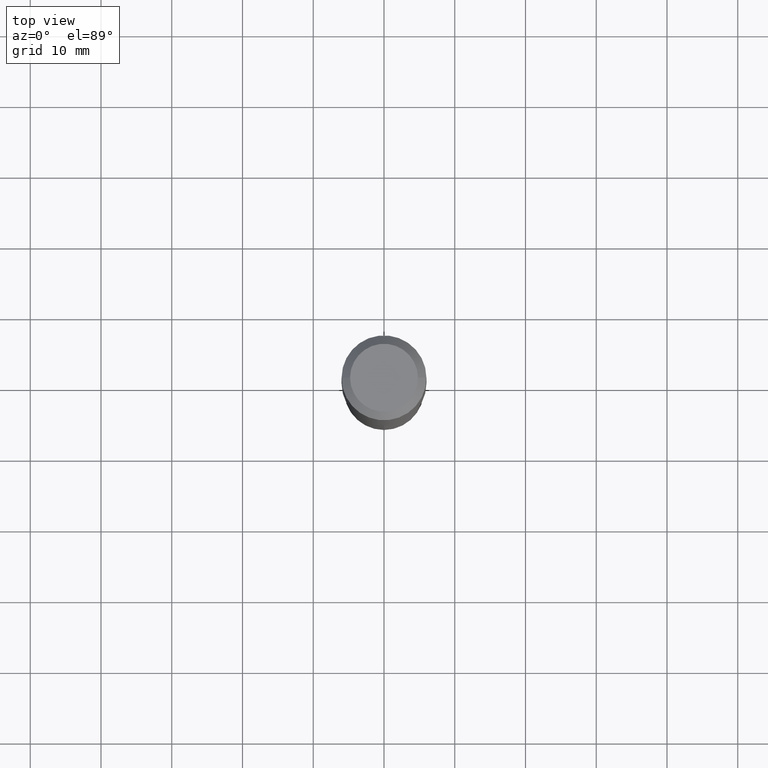
[diagram: clean part render]
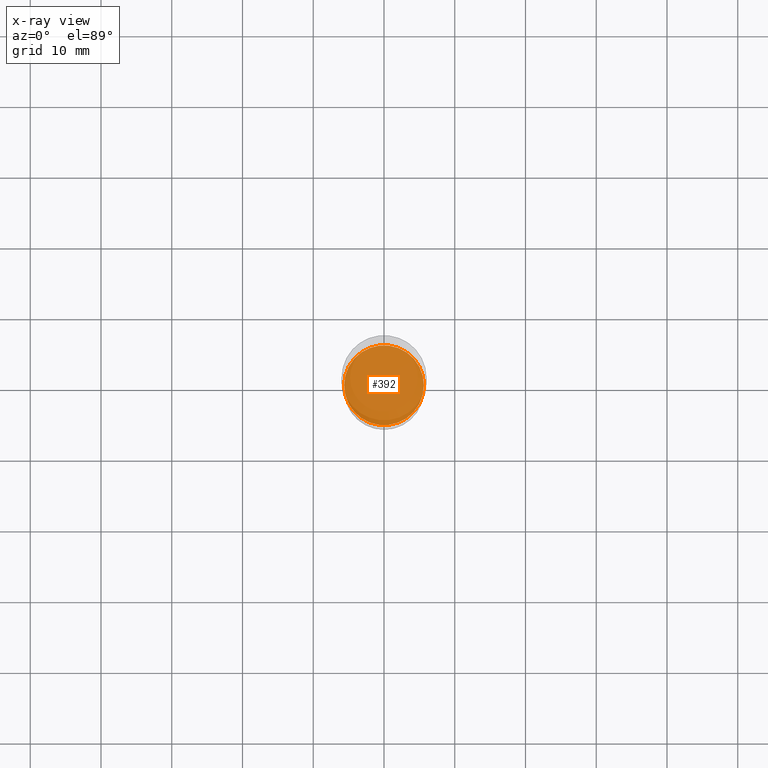
[diagram: x-ray — body ghosted, one internal face saturated and labeled with its STEP entity id]
A machine part, top view, then the same camera in x-ray: the body is ghosted and one INTERNAL B-rep face — a face not visible from any outside direction — is saturated and labeled: STEP entity #392.
In plain terms, the highlighted planar face has unit normal (-0, 0, 1).
Its self-contained STEP definition (entity closure, byte-faithful):
#18 = AXIS2_PLACEMENT_3D ( 'NONE', #471, #140, #287 ) ;
#38 = CARTESIAN_POINT ( 'NONE',  ( 3.871214344919766864E-29, -1.152671263135646311E-14, -2.440900000000000070 ) ) ;
#41 = DIRECTION ( 'NONE',  ( 1.000000000000000000, -6.982962677686265133E-15, 0.000000000000000000 ) ) ;
#77 = AXIS2_PLACEMENT_3D ( 'NONE', #196, #125, #41 ) ;
#78 = FACE_OUTER_BOUND ( 'NONE', #302, .T. ) ;
#115 = ORIENTED_EDGE ( 'NONE', *, *, #128, .F. ) ;
#118 = VERTEX_POINT ( 'NONE', #255 ) ;
#125 = DIRECTION ( 'NONE',  ( -2.445468806185136597E-29, 3.491481338843145583E-15, 1.000000000000000000 ) ) ;
#128 = EDGE_CURVE ( 'NONE', #118, #350, #386, .T. ) ;
#135 = CIRCLE ( 'NONE', #77, 0.2219500000000000084 ) ;
#140 = DIRECTION ( 'NONE',  ( -2.445468806185136597E-29, 3.491481338843145583E-15, 1.000000000000000000 ) ) ;
#149 = ORIENTED_EDGE ( 'NONE', *, *, #466, .F. ) ;
#189 = AXIS2_PLACEMENT_3D ( 'NONE', #38, #420, #233 ) ;
#196 = CARTESIAN_POINT ( 'NONE',  ( 5.969144809017300159E-29, -8.522356799982234543E-15, -2.440900000000000070 ) ) ;
#233 = DIRECTION ( 'NONE',  ( 1.000000000000000000, -6.982962677686265922E-15, 4.876176775795935793E-29 ) ) ;
#255 = CARTESIAN_POINT ( 'NONE',  ( -0.2219500000000000084, -6.942657970788580328E-15, -2.440900000000000070 ) ) ;
#287 = DIRECTION ( 'NONE',  ( 1.000000000000000000, -6.982962677686265133E-15, 0.000000000000000000 ) ) ;
#302 = EDGE_LOOP ( 'NONE', ( #149, #115 ) ) ;
#350 = VERTEX_POINT ( 'NONE', #410 ) ;
#380 = PLANE ( 'NONE',  #189 ) ;
#386 = CIRCLE ( 'NONE', #18, 0.2219500000000000084 ) ;
#392 = ADVANCED_FACE ( 'NONE', ( #78 ), #380, .F. ) ;
#410 = CARTESIAN_POINT ( 'NONE',  ( 0.2219500000000000084, -1.007222536629470142E-14, -2.440900000000000070 ) ) ;
#420 = DIRECTION ( 'NONE',  ( -2.438088387897960049E-29, 3.491481338843145188E-15, 1.000000000000000000 ) ) ;
#466 = EDGE_CURVE ( 'NONE', #350, #118, #135, .T. ) ;
#471 = CARTESIAN_POINT ( 'NONE',  ( 5.969144809017300159E-29, -8.522356799982234543E-15, -2.440900000000000070 ) ) ;